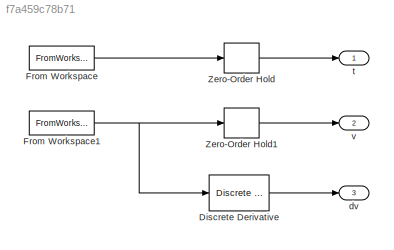
MODEL slx_f7a459c78b71
KIND model
CONFIG AbsTol = auto
CONFIG EnableMultiTasking = off
CONFIG FixedStep = auto
CONFIG MaxStep = auto
CONFIG MinStep = auto
CONFIG RelTol = 1e-3
CONFIG SampleTimeConstraint = Unconstrained
CONFIG SolverName = FixedStepAuto
CONFIG StartTime = 0.0
CONFIG StopTime = 10.0
BLOCK [Reference] Discrete Derivative  REF=simulink/Discrete/Discrete Derivative
  SourceBlock = simulink/Discrete/Discrete Derivative
  SourceType = Discrete Derivative
BLOCK [FromWorkspace] From Workspace
  VariableName = [dc.time, dc.time]
BLOCK [FromWorkspace] From Workspace1
  OutputAfterFinalValue = Holding final value
  VariableName = [dc.time, dc.speed]
BLOCK [ZeroOrderHold] Zero-Order Hold
  SampleTime = -1
BLOCK [ZeroOrderHold] Zero-Order Hold1
  SampleTime = -1
BLOCK [Outport] dv
  Port = 3
  SignalName = dv
BLOCK [Outport] t
  SignalName = t
BLOCK [Outport] v
  Port = 2
  SignalName = v
LINE Discrete Derivative:1 -> dv:1
NET From Workspace1:1 -> Discrete Derivative:1, Zero-Order Hold1:1
LINE From Workspace:1 -> Zero-Order Hold:1
LINE Zero-Order Hold1:1 -> v:1
LINE Zero-Order Hold:1 -> t:1
note: NET lines group one-source signal fan-out (src -> all destinations, sorted); 1:1 wires keep LINE
